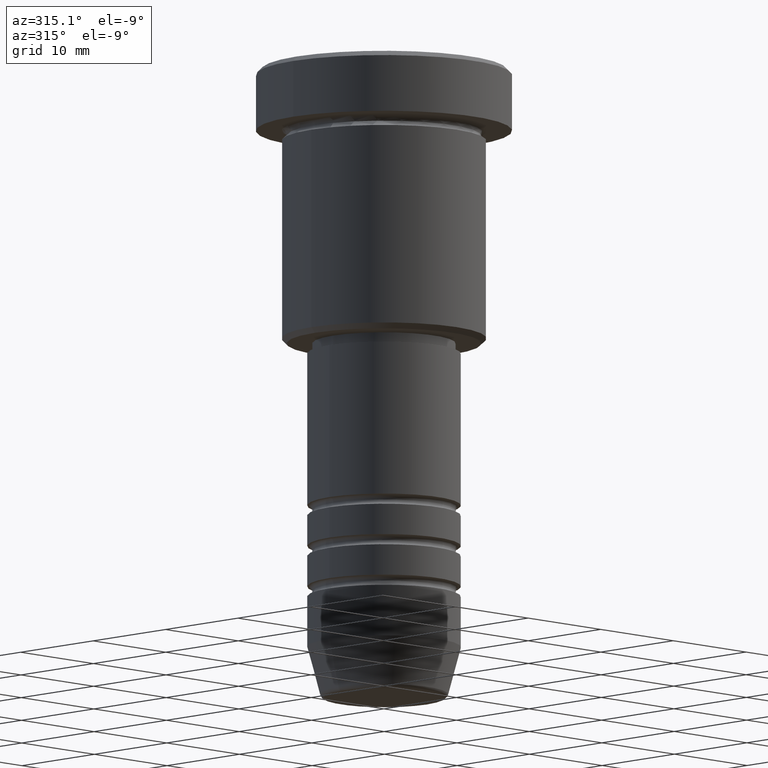
[diagram: clean part render]
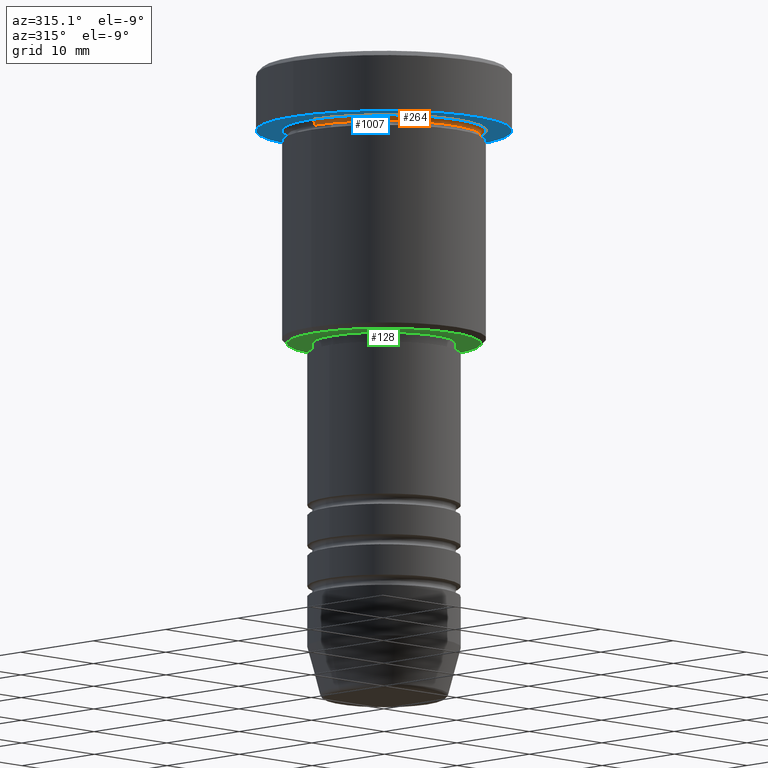
[diagram: same view with three faces highlighted in distinct colors, each labeled with its STEP entity id]
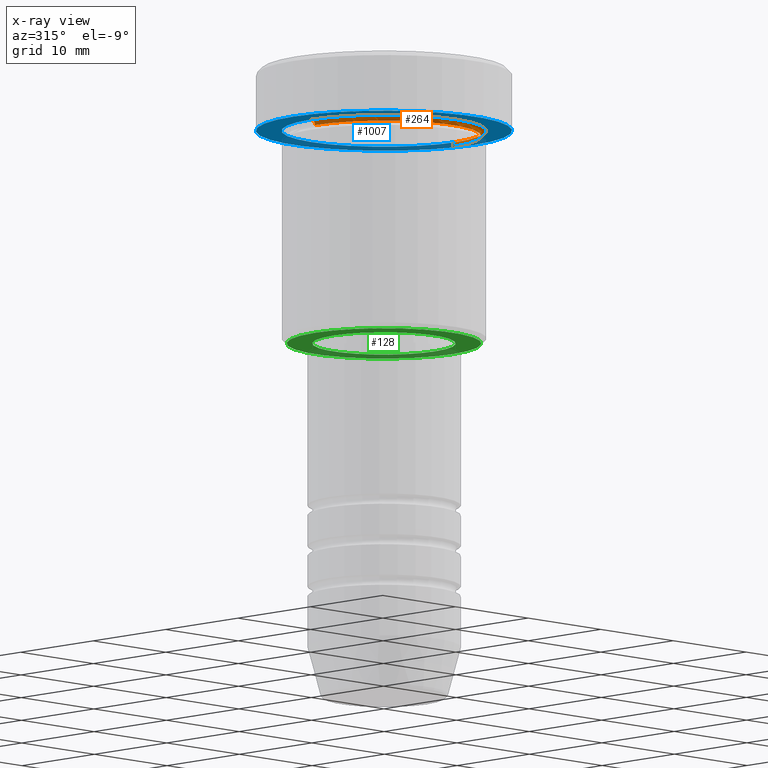
[diagram: x-ray of the same camera — body ghosted, the three highlighted faces saturated]
A machine part, auxiliary view with three faces highlighted in distinct colors.
The next image is the same camera in x-ray (body ghosted, the three faces saturated) — at least one of them is partly hidden behind the body in this view.
Their STEP definitions:

[orange] entity #264 — the highlighted toroidal blend (fillet) surface has major radius 10 mm and minor (blend) radius 0.5 mm.
#32 = CARTESIAN_POINT ( 'NONE',  ( 10.00000000000000000, 1.224646799147353256E-15, -5.999999999999996447 ) ) ;
#48 = AXIS2_PLACEMENT_3D ( 'NONE', #1177, #1095, #926 ) ;
#53 = DIRECTION ( 'NONE',  ( -1.000000000000000000, 0.000000000000000000, 0.000000000000000000 ) ) ;
#79 = CARTESIAN_POINT ( 'NONE',  ( -9.500000000000000000, 1.194030629168669469E-15, -6.499999999999997335 ) ) ;
#99 = VERTEX_POINT ( 'NONE', #79 ) ;
#141 = CARTESIAN_POINT ( 'NONE',  ( 0.000000000000000000, 0.000000000000000000, -5.999999999999996447 ) ) ;
#199 = AXIS2_PLACEMENT_3D ( 'NONE', #986, #713, #328 ) ;
#217 = CIRCLE ( 'NONE', #48, 0.5000000000000004441 ) ;
#260 = EDGE_LOOP ( 'NONE', ( #1133, #817, #685, #744 ) ) ;
#264 = ADVANCED_FACE ( 'NONE', ( #1081 ), #821, .F. ) ;
#278 = AXIS2_PLACEMENT_3D ( 'NONE', #141, #511, #53 ) ;
#328 = DIRECTION ( 'NONE',  ( -1.000000000000000000, 0.000000000000000000, 0.000000000000000000 ) ) ;
#382 = DIRECTION ( 'NONE',  ( -0.000000000000000000, -1.000000000000000000, -0.000000000000000000 ) ) ;
#408 = EDGE_CURVE ( 'NONE', #684, #704, #217, .T. ) ;
#481 = CARTESIAN_POINT ( 'NONE',  ( 9.500000000000000000, 0.000000000000000000, -6.499999999999997335 ) ) ;
#498 = VERTEX_POINT ( 'NONE', #530 ) ;
#511 = DIRECTION ( 'NONE',  ( -0.000000000000000000, -0.000000000000000000, 1.000000000000000000 ) ) ;
#530 = CARTESIAN_POINT ( 'NONE',  ( -10.00000000000000000, 0.000000000000000000, -5.999999999999996447 ) ) ;
#537 = CARTESIAN_POINT ( 'NONE',  ( -10.00000000000000000, 0.000000000000000000, -6.499999999999997335 ) ) ;
#553 = EDGE_CURVE ( 'NONE', #99, #498, #920, .T. ) ;
#643 = AXIS2_PLACEMENT_3D ( 'NONE', #759, #750, #1021 ) ;
#684 = VERTEX_POINT ( 'NONE', #481 ) ;
#685 = ORIENTED_EDGE ( 'NONE', *, *, #1178, .F. ) ;
#704 = VERTEX_POINT ( 'NONE', #32 ) ;
#713 = DIRECTION ( 'NONE',  ( 0.000000000000000000, 0.000000000000000000, -1.000000000000000000 ) ) ;
#744 = ORIENTED_EDGE ( 'NONE', *, *, #553, .F. ) ;
#746 = AXIS2_PLACEMENT_3D ( 'NONE', #537, #382, #903 ) ;
#750 = DIRECTION ( 'NONE',  ( -0.000000000000000000, -0.000000000000000000, 1.000000000000000000 ) ) ;
#759 = CARTESIAN_POINT ( 'NONE',  ( 0.000000000000000000, 0.000000000000000000, -6.499999999999997335 ) ) ;
#817 = ORIENTED_EDGE ( 'NONE', *, *, #408, .T. ) ;
#821 = TOROIDAL_SURFACE ( 'NONE', #199, 10.00000000000000000, 0.5000000000000000000 ) ;
#833 = CIRCLE ( 'NONE', #643, 9.500000000000000000 ) ;
#850 = CIRCLE ( 'NONE', #278, 10.00000000000000000 ) ;
#903 = DIRECTION ( 'NONE',  ( 0.000000000000000000, 0.000000000000000000, -1.000000000000000000 ) ) ;
#920 = CIRCLE ( 'NONE', #746, 0.5000000000000004441 ) ;
#926 = DIRECTION ( 'NONE',  ( -1.000000000000000000, -1.224646799147353454E-16, 0.000000000000000000 ) ) ;
#986 = CARTESIAN_POINT ( 'NONE',  ( 0.000000000000000000, 0.000000000000000000, -6.499999999999997335 ) ) ;
#1021 = DIRECTION ( 'NONE',  ( 1.000000000000000000, 0.000000000000000000, 0.000000000000000000 ) ) ;
#1081 = FACE_OUTER_BOUND ( 'NONE', #260, .T. ) ;
#1095 = DIRECTION ( 'NONE',  ( -1.224646799147353207E-16, 1.000000000000000000, 0.000000000000000000 ) ) ;
#1110 = EDGE_CURVE ( 'NONE', #99, #684, #833, .T. ) ;
#1133 = ORIENTED_EDGE ( 'NONE', *, *, #1110, .T. ) ;
#1177 = CARTESIAN_POINT ( 'NONE',  ( 10.00000000000000000, 1.224646799147353256E-15, -6.499999999999997335 ) ) ;
#1178 = EDGE_CURVE ( 'NONE', #498, #704, #850, .T. ) ;

[blue] entity #1007 — the highlighted planar face has unit normal (0, 0, -1).
#32 = CARTESIAN_POINT ( 'NONE',  ( 10.00000000000000000, 1.224646799147353256E-15, -5.999999999999996447 ) ) ;
#49 = ORIENTED_EDGE ( 'NONE', *, *, #284, .F. ) ;
#53 = DIRECTION ( 'NONE',  ( -1.000000000000000000, 0.000000000000000000, 0.000000000000000000 ) ) ;
#91 = DIRECTION ( 'NONE',  ( 0.000000000000000000, 0.000000000000000000, -1.000000000000000000 ) ) ;
#109 = EDGE_CURVE ( 'NONE', #704, #498, #390, .T. ) ;
#114 = CARTESIAN_POINT ( 'NONE',  ( 0.000000000000000000, 12.50000000000000000, -5.999999999999996447 ) ) ;
#141 = CARTESIAN_POINT ( 'NONE',  ( 0.000000000000000000, 0.000000000000000000, -5.999999999999996447 ) ) ;
#185 = DIRECTION ( 'NONE',  ( -0.000000000000000000, -0.000000000000000000, 1.000000000000000000 ) ) ;
#221 = AXIS2_PLACEMENT_3D ( 'NONE', #114, #91, #467 ) ;
#236 = DIRECTION ( 'NONE',  ( 1.000000000000000000, 0.000000000000000000, 0.000000000000000000 ) ) ;
#271 = DIRECTION ( 'NONE',  ( -1.000000000000000000, 0.000000000000000000, 0.000000000000000000 ) ) ;
#278 = AXIS2_PLACEMENT_3D ( 'NONE', #141, #511, #53 ) ;
#284 = EDGE_CURVE ( 'NONE', #431, #1012, #286, .T. ) ;
#286 = CIRCLE ( 'NONE', #698, 12.50000000000000000 ) ;
#287 = CIRCLE ( 'NONE', #370, 12.50000000000000000 ) ;
#370 = AXIS2_PLACEMENT_3D ( 'NONE', #957, #1085, #908 ) ;
#390 = CIRCLE ( 'NONE', #1137, 10.00000000000000000 ) ;
#431 = VERTEX_POINT ( 'NONE', #998 ) ;
#449 = ORIENTED_EDGE ( 'NONE', *, *, #532, .F. ) ;
#467 = DIRECTION ( 'NONE',  ( -1.000000000000000000, 0.000000000000000000, -0.000000000000000000 ) ) ;
#498 = VERTEX_POINT ( 'NONE', #530 ) ;
#511 = DIRECTION ( 'NONE',  ( -0.000000000000000000, -0.000000000000000000, 1.000000000000000000 ) ) ;
#530 = CARTESIAN_POINT ( 'NONE',  ( -10.00000000000000000, 0.000000000000000000, -5.999999999999996447 ) ) ;
#532 = EDGE_CURVE ( 'NONE', #1012, #431, #287, .T. ) ;
#570 = PLANE ( 'NONE',  #221 ) ;
#658 = FACE_OUTER_BOUND ( 'NONE', #952, .T. ) ;
#698 = AXIS2_PLACEMENT_3D ( 'NONE', #1144, #865, #236 ) ;
#704 = VERTEX_POINT ( 'NONE', #32 ) ;
#720 = CARTESIAN_POINT ( 'NONE',  ( 0.000000000000000000, 0.000000000000000000, -5.999999999999996447 ) ) ;
#779 = ORIENTED_EDGE ( 'NONE', *, *, #1178, .T. ) ;
#830 = CARTESIAN_POINT ( 'NONE',  ( 12.50000000000000000, 0.000000000000000000, -5.999999999999996447 ) ) ;
#850 = CIRCLE ( 'NONE', #278, 10.00000000000000000 ) ;
#865 = DIRECTION ( 'NONE',  ( -0.000000000000000000, -0.000000000000000000, 1.000000000000000000 ) ) ;
#908 = DIRECTION ( 'NONE',  ( 1.000000000000000000, 0.000000000000000000, 0.000000000000000000 ) ) ;
#952 = EDGE_LOOP ( 'NONE', ( #449, #49 ) ) ;
#957 = CARTESIAN_POINT ( 'NONE',  ( 0.000000000000000000, 0.000000000000000000, -5.999999999999996447 ) ) ;
#984 = EDGE_LOOP ( 'NONE', ( #779, #1165 ) ) ;
#998 = CARTESIAN_POINT ( 'NONE',  ( -12.50000000000000000, 1.530808498934191521E-15, -5.999999999999996447 ) ) ;
#1007 = ADVANCED_FACE ( 'NONE', ( #1180, #658 ), #570, .T. ) ;
#1012 = VERTEX_POINT ( 'NONE', #830 ) ;
#1085 = DIRECTION ( 'NONE',  ( -0.000000000000000000, -0.000000000000000000, 1.000000000000000000 ) ) ;
#1137 = AXIS2_PLACEMENT_3D ( 'NONE', #720, #185, #271 ) ;
#1144 = CARTESIAN_POINT ( 'NONE',  ( 0.000000000000000000, 0.000000000000000000, -5.999999999999996447 ) ) ;
#1165 = ORIENTED_EDGE ( 'NONE', *, *, #109, .T. ) ;
#1178 = EDGE_CURVE ( 'NONE', #498, #704, #850, .T. ) ;
#1180 = FACE_BOUND ( 'NONE', #984, .T. ) ;

[green] entity #128 — the highlighted planar face has unit normal (0, 0, -1).
#9 = DIRECTION ( 'NONE',  ( -1.000000000000000000, 0.000000000000000000, -0.000000000000000000 ) ) ;
#96 = PLANE ( 'NONE',  #460 ) ;
#115 = CIRCLE ( 'NONE', #776, 6.999999999999999112 ) ;
#128 = ADVANCED_FACE ( 'NONE', ( #923, #917 ), #96, .T. ) ;
#135 = CIRCLE ( 'NONE', #812, 6.999999999999999112 ) ;
#149 = DIRECTION ( 'NONE',  ( -0.000000000000000000, -0.000000000000000000, 1.000000000000000000 ) ) ;
#160 = EDGE_LOOP ( 'NONE', ( #335, #603 ) ) ;
#172 = CARTESIAN_POINT ( 'NONE',  ( 0.000000000000000000, 0.000000000000000000, -26.99999999999999645 ) ) ;
#189 = DIRECTION ( 'NONE',  ( 1.000000000000000000, 0.000000000000000000, 0.000000000000000000 ) ) ;
#219 = DIRECTION ( 'NONE',  ( -1.000000000000000000, 0.000000000000000000, 0.000000000000000000 ) ) ;
#251 = CARTESIAN_POINT ( 'NONE',  ( 0.000000000000000000, 0.000000000000000000, -26.99999999999999645 ) ) ;
#257 = AXIS2_PLACEMENT_3D ( 'NONE', #251, #616, #219 ) ;
#262 = CARTESIAN_POINT ( 'NONE',  ( 9.500000000000001776, 0.000000000000000000, -26.99999999999999645 ) ) ;
#268 = VERTEX_POINT ( 'NONE', #1043 ) ;
#335 = ORIENTED_EDGE ( 'NONE', *, *, #655, .T. ) ;
#387 = DIRECTION ( 'NONE',  ( -0.000000000000000000, -0.000000000000000000, 1.000000000000000000 ) ) ;
#405 = EDGE_CURVE ( 'NONE', #901, #1033, #1161, .T. ) ;
#412 = CARTESIAN_POINT ( 'NONE',  ( 0.000000000000000000, 0.000000000000000000, -26.99999999999999645 ) ) ;
#436 = ORIENTED_EDGE ( 'NONE', *, *, #965, .T. ) ;
#458 = CARTESIAN_POINT ( 'NONE',  ( 0.000000000000000000, 0.000000000000000000, -26.99999999999999645 ) ) ;
#460 = AXIS2_PLACEMENT_3D ( 'NONE', #733, #650, #9 ) ;
#507 = CIRCLE ( 'NONE', #257, 9.500000000000001776 ) ;
#515 = EDGE_LOOP ( 'NONE', ( #695, #436 ) ) ;
#555 = DIRECTION ( 'NONE',  ( 0.000000000000000000, 0.000000000000000000, -1.000000000000000000 ) ) ;
#574 = AXIS2_PLACEMENT_3D ( 'NONE', #458, #555, #1183 ) ;
#603 = ORIENTED_EDGE ( 'NONE', *, *, #405, .T. ) ;
#616 = DIRECTION ( 'NONE',  ( 0.000000000000000000, 0.000000000000000000, -1.000000000000000000 ) ) ;
#646 = EDGE_CURVE ( 'NONE', #1170, #268, #115, .T. ) ;
#650 = DIRECTION ( 'NONE',  ( 0.000000000000000000, 0.000000000000000000, -1.000000000000000000 ) ) ;
#655 = EDGE_CURVE ( 'NONE', #1033, #901, #507, .T. ) ;
#688 = CARTESIAN_POINT ( 'NONE',  ( -9.500000000000001776, 1.194030629168669469E-15, -26.99999999999999645 ) ) ;
#695 = ORIENTED_EDGE ( 'NONE', *, *, #646, .T. ) ;
#733 = CARTESIAN_POINT ( 'NONE',  ( 0.000000000000000000, 10.00000000000000000, -26.99999999999999645 ) ) ;
#776 = AXIS2_PLACEMENT_3D ( 'NONE', #412, #149, #1136 ) ;
#812 = AXIS2_PLACEMENT_3D ( 'NONE', #172, #387, #189 ) ;
#901 = VERTEX_POINT ( 'NONE', #688 ) ;
#917 = FACE_BOUND ( 'NONE', #515, .T. ) ;
#923 = FACE_OUTER_BOUND ( 'NONE', #160, .T. ) ;
#965 = EDGE_CURVE ( 'NONE', #268, #1170, #135, .T. ) ;
#976 = CARTESIAN_POINT ( 'NONE',  ( 6.999999999999999112, 0.000000000000000000, -26.99999999999999645 ) ) ;
#1033 = VERTEX_POINT ( 'NONE', #262 ) ;
#1043 = CARTESIAN_POINT ( 'NONE',  ( -6.999999999999999112, 8.572527594031472204E-16, -26.99999999999999645 ) ) ;
#1136 = DIRECTION ( 'NONE',  ( 1.000000000000000000, 0.000000000000000000, 0.000000000000000000 ) ) ;
#1161 = CIRCLE ( 'NONE', #574, 9.500000000000001776 ) ;
#1170 = VERTEX_POINT ( 'NONE', #976 ) ;
#1183 = DIRECTION ( 'NONE',  ( -1.000000000000000000, 0.000000000000000000, 0.000000000000000000 ) ) ;